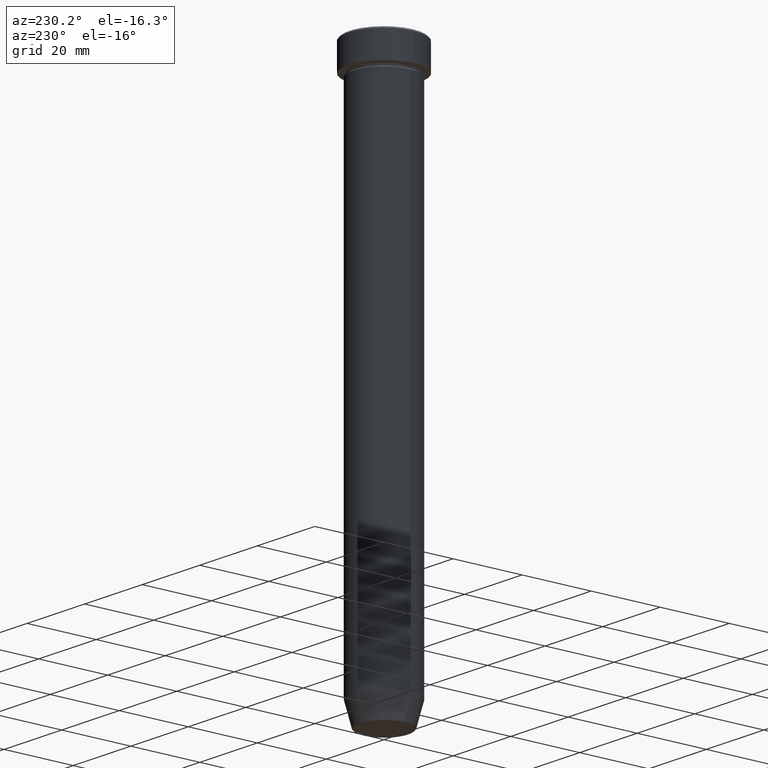
[diagram: clean part render]
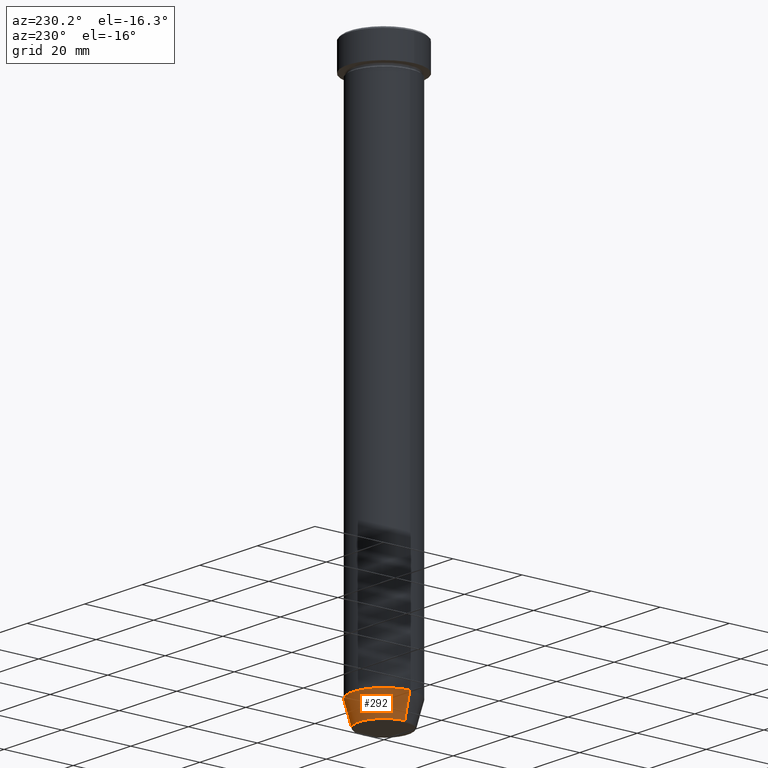
[diagram: same view with one face highlighted and labeled with its STEP entity id]
A machine part, auxiliary view. The second image highlights one B-rep face of the part: STEP entity #292.
In plain terms, the highlighted conical surface has half-angle 15 deg.
Its self-contained STEP definition (entity closure, byte-faithful):
#4 = EDGE_CURVE ( 'NONE', #504, #593, #260, .T. ) ;
#7 = DIRECTION ( 'NONE',  ( 0.2588190451025212391, 0.000000000000000000, 0.9659258262890680902 ) ) ;
#33 = VERTEX_POINT ( 'NONE', #470 ) ;
#56 = DIRECTION ( 'NONE',  ( -1.000000000000000000, 0.000000000000000000, 0.000000000000000000 ) ) ;
#71 = CARTESIAN_POINT ( 'NONE',  ( -9.000000000000000000, 1.102182119232617714E-15, -152.9999999999999716 ) ) ;
#131 = DIRECTION ( 'NONE',  ( -0.000000000000000000, -0.000000000000000000, 1.000000000000000000 ) ) ;
#152 = CARTESIAN_POINT ( 'NONE',  ( -7.124355652982127474, 8.724819346411914255E-16, -160.0000000000000000 ) ) ;
#191 = LINE ( 'NONE', #471, #277 ) ;
#196 = CIRCLE ( 'NONE', #474, 7.223655072137178834 ) ;
#216 = ORIENTED_EDGE ( 'NONE', *, *, #467, .F. ) ;
#240 = ORIENTED_EDGE ( 'NONE', *, *, #542, .T. ) ;
#246 = ORIENTED_EDGE ( 'NONE', *, *, #4, .T. ) ;
#247 = CIRCLE ( 'NONE', #377, 9.000000000000000000 ) ;
#260 = LINE ( 'NONE', #152, #311 ) ;
#270 = CARTESIAN_POINT ( 'NONE',  ( 0.000000000000000000, 0.000000000000000000, -152.9999999999999716 ) ) ;
#272 = EDGE_LOOP ( 'NONE', ( #240, #246, #459, #216 ) ) ;
#273 = DIRECTION ( 'NONE',  ( 1.000000000000000000, 0.000000000000000000, 0.000000000000000000 ) ) ;
#277 = VECTOR ( 'NONE', #7, 1000.000000000000114 ) ;
#284 = CARTESIAN_POINT ( 'NONE',  ( 0.000000000000000000, 0.000000000000000000, -159.6294095225512706 ) ) ;
#290 = CARTESIAN_POINT ( 'NONE',  ( -7.223655072137179722, 9.934123627281759193E-16, -159.6294095225512706 ) ) ;
#292 = ADVANCED_FACE ( 'NONE', ( #585 ), #487, .T. ) ;
#311 = VECTOR ( 'NONE', #331, 1000.000000000000114 ) ;
#331 = DIRECTION ( 'NONE',  ( -0.2588190451025212391, 3.169619151431771721E-17, 0.9659258262890680902 ) ) ;
#363 = CARTESIAN_POINT ( 'NONE',  ( 9.000000000000000000, 0.000000000000000000, -152.9999999999999716 ) ) ;
#377 = AXIS2_PLACEMENT_3D ( 'NONE', #270, #131, #492 ) ;
#389 = AXIS2_PLACEMENT_3D ( 'NONE', #576, #579, #273 ) ;
#393 = VERTEX_POINT ( 'NONE', #363 ) ;
#416 = EDGE_CURVE ( 'NONE', #393, #593, #247, .T. ) ;
#459 = ORIENTED_EDGE ( 'NONE', *, *, #416, .F. ) ;
#467 = EDGE_CURVE ( 'NONE', #33, #393, #191, .T. ) ;
#470 = CARTESIAN_POINT ( 'NONE',  ( 7.223655072137179722, 0.000000000000000000, -159.6294095225512706 ) ) ;
#471 = CARTESIAN_POINT ( 'NONE',  ( 7.124355652982127474, 0.000000000000000000, -160.0000000000000000 ) ) ;
#474 = AXIS2_PLACEMENT_3D ( 'NONE', #284, #556, #56 ) ;
#487 = CONICAL_SURFACE ( 'NONE', #389, 7.124355652982127474, 0.2617993877991499629 ) ;
#492 = DIRECTION ( 'NONE',  ( 1.000000000000000000, 0.000000000000000000, 0.000000000000000000 ) ) ;
#504 = VERTEX_POINT ( 'NONE', #290 ) ;
#542 = EDGE_CURVE ( 'NONE', #33, #504, #196, .T. ) ;
#556 = DIRECTION ( 'NONE',  ( -0.000000000000000000, -0.000000000000000000, 1.000000000000000000 ) ) ;
#576 = CARTESIAN_POINT ( 'NONE',  ( 0.000000000000000000, 0.000000000000000000, -160.0000000000000000 ) ) ;
#579 = DIRECTION ( 'NONE',  ( -0.000000000000000000, -0.000000000000000000, 1.000000000000000000 ) ) ;
#585 = FACE_OUTER_BOUND ( 'NONE', #272, .T. ) ;
#593 = VERTEX_POINT ( 'NONE', #71 ) ;